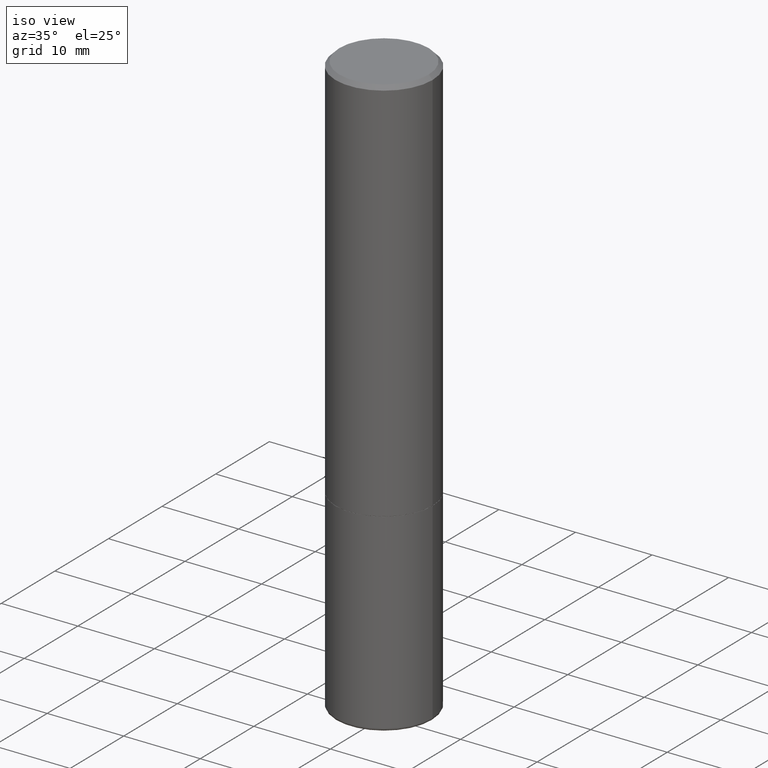
[diagram: clean part render]
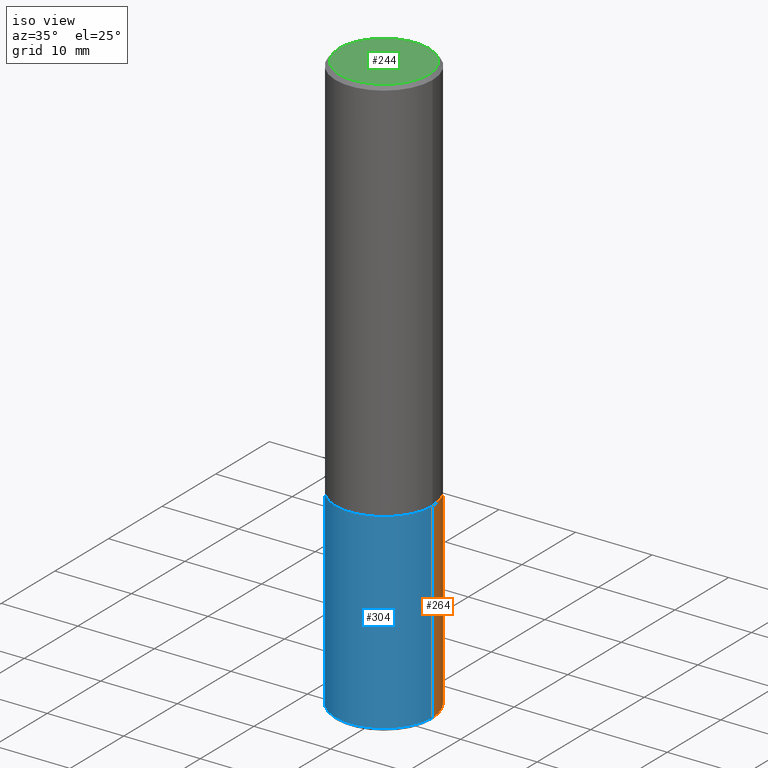
[diagram: same view with three faces highlighted in distinct colors, each labeled with its STEP entity id]
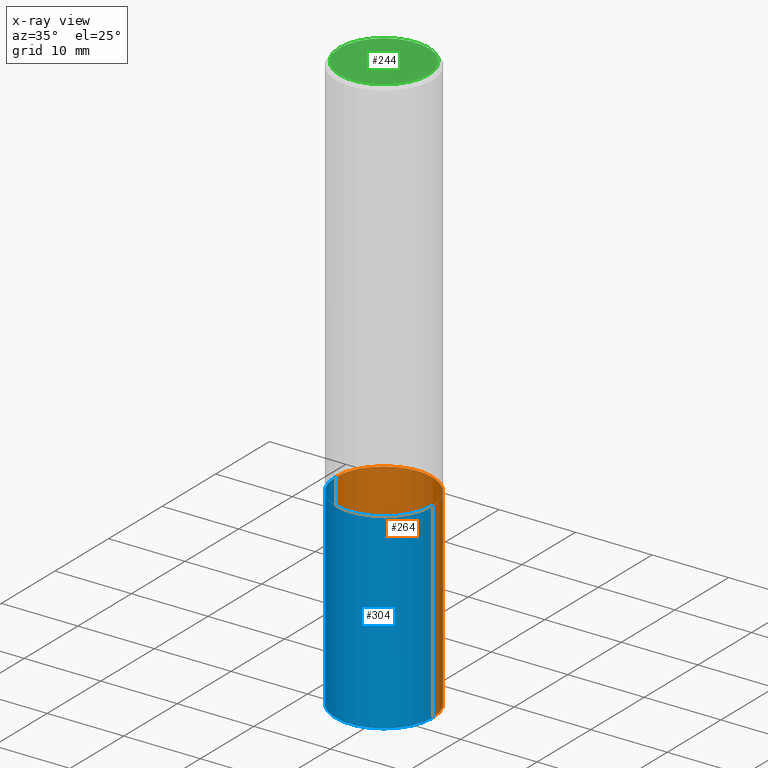
[diagram: x-ray of the same camera — body ghosted, the three highlighted faces saturated]
A machine part, iso view with three faces highlighted in distinct colors.
The next image is the same camera in x-ray (body ghosted, the three faces saturated) — at least one of them is partly hidden behind the body in this view.
Their STEP definitions:

[orange] entity #264 — the highlighted cylindrical surface (partial cylindrical patch) has radius 6.35 mm, axis along (-0, 0, 1).
#3 = AXIS2_PLACEMENT_3D ( 'NONE', #38, #111, #117 ) ;
#37 = VECTOR ( 'NONE', #479, 39.37007874015748143 ) ;
#38 = CARTESIAN_POINT ( 'NONE',  ( 4.890937612370273754E-29, -6.982962677686291954E-15, -2.000000000000000444 ) ) ;
#90 = EDGE_LOOP ( 'NONE', ( #435, #275, #464, #133 ) ) ;
#105 = VECTOR ( 'NONE', #295, 39.37007874015748143 ) ;
#111 = DIRECTION ( 'NONE',  ( -2.445468806185136597E-29, 3.491481338843145583E-15, 1.000000000000000000 ) ) ;
#117 = DIRECTION ( 'NONE',  ( 1.000000000000000000, -6.982962677686266711E-15, 0.000000000000000000 ) ) ;
#122 = DIRECTION ( 'NONE',  ( -2.445468806185136597E-29, 3.491481338843145583E-15, 1.000000000000000000 ) ) ;
#124 = CARTESIAN_POINT ( 'NONE',  ( 0.2500000000000000000, -8.728703347107858632E-15, -2.000000000000000444 ) ) ;
#133 = ORIENTED_EDGE ( 'NONE', *, *, #451, .F. ) ;
#139 = CARTESIAN_POINT ( 'NONE',  ( 0.2500000000000000000, -1.745740669421566678E-15, 1.219044193948983948E-29 ) ) ;
#141 = CARTESIAN_POINT ( 'NONE',  ( -0.2500000000000000000, -6.926161394753122296E-15, -2.985000571154037718 ) ) ;
#162 = CIRCLE ( 'NONE', #3, 0.2500000000000000000 ) ;
#185 = EDGE_CURVE ( 'NONE', #468, #340, #162, .T. ) ;
#187 = CARTESIAN_POINT ( 'NONE',  ( 7.299725783202014843E-29, -1.042207379062045357E-14, -2.985000571154037718 ) ) ;
#212 = CIRCLE ( 'NONE', #274, 0.2500000000000000000 ) ;
#218 = CARTESIAN_POINT ( 'NONE',  ( -0.2500000000000000000, -6.926161394753122296E-15, -2.000000000000000444 ) ) ;
#222 = DIRECTION ( 'NONE',  ( -2.445468806185136597E-29, 3.491481338843145583E-15, 1.000000000000000000 ) ) ;
#238 = VERTEX_POINT ( 'NONE', #382 ) ;
#247 = LINE ( 'NONE', #410, #37 ) ;
#258 = AXIS2_PLACEMENT_3D ( 'NONE', #346, #122, #276 ) ;
#264 = ADVANCED_FACE ( 'NONE', ( #423 ), #466, .T. ) ;
#274 = AXIS2_PLACEMENT_3D ( 'NONE', #187, #222, #362 ) ;
#275 = ORIENTED_EDGE ( 'NONE', *, *, #324, .T. ) ;
#276 = DIRECTION ( 'NONE',  ( 1.000000000000000000, -6.982962677686266711E-15, 4.876176775795935793E-29 ) ) ;
#295 = DIRECTION ( 'NONE',  ( -2.445468806185136877E-29, 3.491481338843145188E-15, 1.000000000000000000 ) ) ;
#324 = EDGE_CURVE ( 'NONE', #437, #340, #247, .T. ) ;
#340 = VERTEX_POINT ( 'NONE', #218 ) ;
#346 = CARTESIAN_POINT ( 'NONE',  ( 0.000000000000000000, 0.000000000000000000, 0.000000000000000000 ) ) ;
#359 = EDGE_CURVE ( 'NONE', #238, #437, #212, .T. ) ;
#362 = DIRECTION ( 'NONE',  ( 1.000000000000000000, -6.982962677686270655E-15, 0.000000000000000000 ) ) ;
#382 = CARTESIAN_POINT ( 'NONE',  ( 0.2500000000000000000, -1.216781446004202182E-14, -2.985000571154037718 ) ) ;
#410 = CARTESIAN_POINT ( 'NONE',  ( -0.2500000000000000000, 1.776356839400250465E-15, -1.229733772563726445E-29 ) ) ;
#423 = FACE_OUTER_BOUND ( 'NONE', #90, .T. ) ;
#435 = ORIENTED_EDGE ( 'NONE', *, *, #359, .T. ) ;
#437 = VERTEX_POINT ( 'NONE', #141 ) ;
#451 = EDGE_CURVE ( 'NONE', #238, #468, #481, .T. ) ;
#464 = ORIENTED_EDGE ( 'NONE', *, *, #185, .F. ) ;
#466 = CYLINDRICAL_SURFACE ( 'NONE', #258, 0.2500000000000000000 ) ;
#468 = VERTEX_POINT ( 'NONE', #124 ) ;
#479 = DIRECTION ( 'NONE',  ( -2.445468806185136877E-29, 3.491481338843145188E-15, 1.000000000000000000 ) ) ;
#481 = LINE ( 'NONE', #139, #105 ) ;

[blue] entity #304 — the highlighted cylindrical surface (partial cylindrical patch) has radius 6.35 mm, axis along (-0, 0, 1).
#37 = VECTOR ( 'NONE', #479, 39.37007874015748143 ) ;
#51 = AXIS2_PLACEMENT_3D ( 'NONE', #446, #401, #441 ) ;
#56 = AXIS2_PLACEMENT_3D ( 'NONE', #125, #280, #228 ) ;
#57 = CIRCLE ( 'NONE', #408, 0.2500000000000000000 ) ;
#63 = ORIENTED_EDGE ( 'NONE', *, *, #272, .F. ) ;
#84 = ORIENTED_EDGE ( 'NONE', *, *, #400, .T. ) ;
#105 = VECTOR ( 'NONE', #295, 39.37007874015748143 ) ;
#124 = CARTESIAN_POINT ( 'NONE',  ( 0.2500000000000000000, -8.728703347107858632E-15, -2.000000000000000444 ) ) ;
#125 = CARTESIAN_POINT ( 'NONE',  ( 4.890937612370273754E-29, -6.982962677686291954E-15, -2.000000000000000444 ) ) ;
#127 = DIRECTION ( 'NONE',  ( -2.445468806185136597E-29, 3.491481338843145583E-15, 1.000000000000000000 ) ) ;
#139 = CARTESIAN_POINT ( 'NONE',  ( 0.2500000000000000000, -1.745740669421566678E-15, 1.219044193948983948E-29 ) ) ;
#141 = CARTESIAN_POINT ( 'NONE',  ( -0.2500000000000000000, -6.926161394753122296E-15, -2.985000571154037718 ) ) ;
#213 = CYLINDRICAL_SURFACE ( 'NONE', #51, 0.2500000000000000000 ) ;
#218 = CARTESIAN_POINT ( 'NONE',  ( -0.2500000000000000000, -6.926161394753122296E-15, -2.000000000000000444 ) ) ;
#228 = DIRECTION ( 'NONE',  ( 1.000000000000000000, -6.982962677686266711E-15, 0.000000000000000000 ) ) ;
#238 = VERTEX_POINT ( 'NONE', #382 ) ;
#247 = LINE ( 'NONE', #410, #37 ) ;
#272 = EDGE_CURVE ( 'NONE', #340, #468, #377, .T. ) ;
#280 = DIRECTION ( 'NONE',  ( -2.445468806185136597E-29, 3.491481338843145583E-15, 1.000000000000000000 ) ) ;
#291 = FACE_OUTER_BOUND ( 'NONE', #394, .T. ) ;
#295 = DIRECTION ( 'NONE',  ( -2.445468806185136877E-29, 3.491481338843145188E-15, 1.000000000000000000 ) ) ;
#304 = ADVANCED_FACE ( 'NONE', ( #291 ), #213, .T. ) ;
#324 = EDGE_CURVE ( 'NONE', #437, #340, #247, .T. ) ;
#325 = CARTESIAN_POINT ( 'NONE',  ( 7.299725783202014843E-29, -1.042207379062045357E-14, -2.985000571154037718 ) ) ;
#340 = VERTEX_POINT ( 'NONE', #218 ) ;
#353 = ORIENTED_EDGE ( 'NONE', *, *, #451, .T. ) ;
#377 = CIRCLE ( 'NONE', #56, 0.2500000000000000000 ) ;
#382 = CARTESIAN_POINT ( 'NONE',  ( 0.2500000000000000000, -1.216781446004202182E-14, -2.985000571154037718 ) ) ;
#392 = DIRECTION ( 'NONE',  ( 1.000000000000000000, -6.982962677686270655E-15, 0.000000000000000000 ) ) ;
#394 = EDGE_LOOP ( 'NONE', ( #422, #84, #353, #63 ) ) ;
#400 = EDGE_CURVE ( 'NONE', #437, #238, #57, .T. ) ;
#401 = DIRECTION ( 'NONE',  ( -2.445468806185136597E-29, 3.491481338843145583E-15, 1.000000000000000000 ) ) ;
#408 = AXIS2_PLACEMENT_3D ( 'NONE', #325, #127, #392 ) ;
#410 = CARTESIAN_POINT ( 'NONE',  ( -0.2500000000000000000, 1.776356839400250465E-15, -1.229733772563726445E-29 ) ) ;
#422 = ORIENTED_EDGE ( 'NONE', *, *, #324, .F. ) ;
#437 = VERTEX_POINT ( 'NONE', #141 ) ;
#441 = DIRECTION ( 'NONE',  ( 1.000000000000000000, -6.982962677686266711E-15, 4.876176775795935793E-29 ) ) ;
#446 = CARTESIAN_POINT ( 'NONE',  ( 0.000000000000000000, 0.000000000000000000, 0.000000000000000000 ) ) ;
#451 = EDGE_CURVE ( 'NONE', #238, #468, #481, .T. ) ;
#468 = VERTEX_POINT ( 'NONE', #124 ) ;
#479 = DIRECTION ( 'NONE',  ( -2.445468806185136877E-29, 3.491481338843145188E-15, 1.000000000000000000 ) ) ;
#481 = LINE ( 'NONE', #139, #105 ) ;

[green] entity #244 — the highlighted planar face has unit normal (0, -0, -1).
#27 = DIRECTION ( 'NONE',  ( -2.445468806185136597E-29, 3.491481338843145583E-15, 1.000000000000000000 ) ) ;
#31 = EDGE_LOOP ( 'NONE', ( #86, #83 ) ) ;
#32 = CARTESIAN_POINT ( 'NONE',  ( -0.2299999999999991773, 1.640996229256267194E-15, 4.268512490089056766E-18 ) ) ;
#42 = VERTEX_POINT ( 'NONE', #482 ) ;
#44 = AXIS2_PLACEMENT_3D ( 'NONE', #221, #261, #490 ) ;
#49 = VERTEX_POINT ( 'NONE', #32 ) ;
#83 = ORIENTED_EDGE ( 'NONE', *, *, #411, .T. ) ;
#86 = ORIENTED_EDGE ( 'NONE', *, *, #449, .T. ) ;
#107 = CARTESIAN_POINT ( 'NONE',  ( -1.043851414335219820E-46, 1.490343170380447200E-32, 4.268512490100411279E-18 ) ) ;
#113 = AXIS2_PLACEMENT_3D ( 'NONE', #458, #161, #201 ) ;
#161 = DIRECTION ( 'NONE',  ( 2.438088387897960049E-29, -3.491481338843145188E-15, -1.000000000000000000 ) ) ;
#174 = CIRCLE ( 'NONE', #190, 0.2299999999999991773 ) ;
#190 = AXIS2_PLACEMENT_3D ( 'NONE', #107, #27, #331 ) ;
#201 = DIRECTION ( 'NONE',  ( -1.000000000000000000, 6.982962677686265922E-15, -4.876176775795935793E-29 ) ) ;
#221 = CARTESIAN_POINT ( 'NONE',  ( -1.043851414335219820E-46, 1.490343170380447200E-32, 4.268512490100411279E-18 ) ) ;
#244 = ADVANCED_FACE ( 'NONE', ( #317 ), #462, .F. ) ;
#261 = DIRECTION ( 'NONE',  ( -2.445468806185136597E-29, 3.491481338843145583E-15, 1.000000000000000000 ) ) ;
#317 = FACE_OUTER_BOUND ( 'NONE', #31, .T. ) ;
#331 = DIRECTION ( 'NONE',  ( 1.000000000000000000, -6.982962677686267499E-15, 4.876225828469326258E-29 ) ) ;
#411 = EDGE_CURVE ( 'NONE', #42, #49, #455, .T. ) ;
#449 = EDGE_CURVE ( 'NONE', #49, #42, #174, .T. ) ;
#455 = CIRCLE ( 'NONE', #44, 0.2299999999999991773 ) ;
#458 = CARTESIAN_POINT ( 'NONE',  ( 1.606081415867835348E-15, 0.2299999999999991773, -8.009064516888704189E-16 ) ) ;
#462 = PLANE ( 'NONE',  #113 ) ;
#482 = CARTESIAN_POINT ( 'NONE',  ( 0.2299999999999991773, -1.681434332853594081E-15, 4.268512490111905999E-18 ) ) ;
#490 = DIRECTION ( 'NONE',  ( 1.000000000000000000, -6.982962677686267499E-15, 4.876225828469326258E-29 ) ) ;